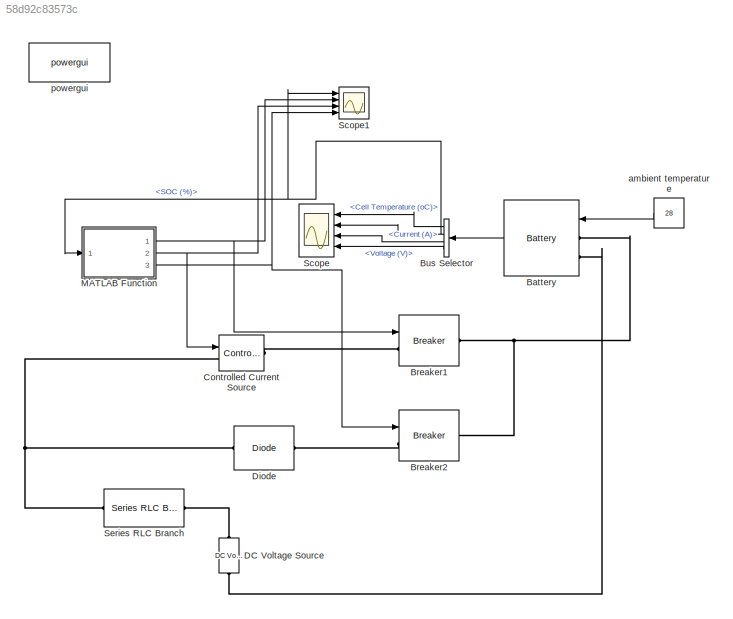
MODEL slx_58d92c83573c
KIND model
CONFIG AbsTol = auto
CONFIG EnableMultiTasking = off
CONFIG FixedStep = auto
CONFIG MaxStep = auto
CONFIG MinStep = auto
CONFIG RelTol = 1e-3
CONFIG SampleTimeConstraint = Unconstrained
CONFIG SolverName = VariableStepAuto
CONFIG StartTime = 0.0
CONFIG StopTime = 3600*2
BLOCK [Reference] Battery  REF=spsBatteryLib/Battery
  Ports = [1, 1, 0, 0, 0, 2]
  SourceBlock = spsBatteryLib/Battery
  SourceProductBaseCode = PS
  SourceType = Battery
BLOCK [Reference] Breaker1  REF=spsBreakerLib/Breaker
  Ports = [1, 0, 0, 0, 0, 1, 1]
  SourceBlock = spsBreakerLib/Breaker
  SourceProductBaseCode = PS
  SourceType = Breaker
BLOCK [Reference] Breaker2  REF=spsBreakerLib/Breaker
  Ports = [1, 0, 0, 0, 0, 1, 1]
  SourceBlock = spsBreakerLib/Breaker
  SourceProductBaseCode = PS
  SourceType = Breaker
BLOCK [BusSelector] Bus Selector
  NameLocation = top
  OutputSignals = Cell Temperature (oC),SOC (%),Current (A),Voltage (V)
  Ports = [1, 4]
BLOCK [Reference] Controlled Current Source  REF=spsControlledCurrentSourceLib/Controlled Current Source
  NameLocation = left
  Ports = [1, 0, 0, 0, 0, 1, 1]
  SourceBlock = spsControlledCurrentSourceLib/Controlled Current Source
  SourceProductBaseCode = PS
  SourceType = Controlled Current Source
BLOCK [Reference] DC Voltage Source  REF=spsDCVoltageSourceLib/DC Voltage Source
  Ports = [0, 0, 0, 0, 0, 1, 1]
  SourceBlock = spsDCVoltageSourceLib/DC Voltage Source
  SourceProductBaseCode = PS
  SourceType = DC Voltage Source
BLOCK [Reference] Diode  REF=spsDiodeLib/Diode
  Ports = [0, 0, 0, 0, 0, 1, 1]
  SourceBlock = spsDiodeLib/Diode
  SourceProductBaseCode = PS
  SourceType = Diode
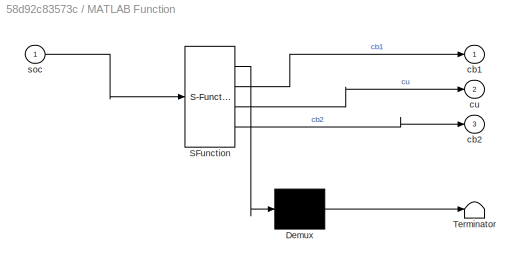
BLOCK [SubSystem] MATLAB Function
  ErrorFcn = Stateflow.Translate.translate
  PermitHierarchicalResolution = ExplicitOnly
  Ports = [1, 3]
  RequestExecContextInheritance = off
  SFBlockType = MATLAB Function
  TreatAsAtomicUnit = on
BLOCK [Demux] MATLAB Function/ Demux 
  Outputs = 1
  Ports = [1, 1]
BLOCK [S-Function] MATLAB Function/ SFunction 
  EnableBusSupport = on
  FunctionName = sf_sfun
  PortCounts = [1 4]
  Ports = [1, 4]
  SFcnIsStateOwnerBlock = off
  SFunctionDeploymentMode = off
  Tag = Stateflow S-Function 2
BLOCK [Terminator] MATLAB Function/ Terminator 
BLOCK [Outport] MATLAB Function/cb1
BLOCK [Outport] MATLAB Function/cb2
  Port = 3
BLOCK [Outport] MATLAB Function/cu
  Port = 2
BLOCK [Inport] MATLAB Function/soc
BLOCK [Scope] Scope
  Floating = off
  NameLocation = top
  NumInputPorts = 4
  Ports = [4]
  ScopeSpecificationString = Simulink.scopes.TimeScopeBlockCfg('CurrentConfiguration', extmgr.ConfigurationSet(extmgr.Configuration('Core','General UI',true),extmgr.Configuration('Core','Source UI',true),extmgr.Configuration('Sources','WiredSimulink',true),extmgr.Configuration('Visuals','Time Domain',true,'SerializedDisplays',{struct('MinYLimReal','18.99986','MaxYLimReal','29.00128','YLabelReal','','MinYLimMag','18.99986','Ma...<+3332ch>
BLOCK [Scope] Scope1
  Floating = off
  NumInputPorts = 4
  Ports = [4]
  ScopeSpecificationString = Simulink.scopes.TimeScopeBlockCfg('CurrentConfiguration', extmgr.ConfigurationSet(extmgr.Configuration('Core','General UI',true),extmgr.Configuration('Core','Source UI',true),extmgr.Configuration('Sources','WiredSimulink',true,'DataLoggingVariableName','ScopeData1'),extmgr.Configuration('Visuals','Time Domain',true,'SerializedDisplays',{struct('MinYLimReal','10.26807','MaxYLimReal','107.58734','YL...<+3399ch>
BLOCK [Reference] Series RLC Branch  REF=spsSeriesRLCBranchLib/Series RLC Branch
  Ports = [0, 0, 0, 0, 0, 1, 1]
  SourceBlock = spsSeriesRLCBranchLib/Series RLC Branch
  SourceProductBaseCode = PS
  SourceType = Series RLC Branch
BLOCK [Constant] ambient temperature
  NameLocation = top
  Value = 28
BLOCK [Reference] powergui  REF=spspowerguiLib/powergui
  Ports = []
  Priority = 1
  SourceBlock = spspowerguiLib/powergui
  SourceProductBaseCode = PS
  SourceType = PSB option menu block
LINE Battery:1 -> Bus Selector:1
LINE Bus Selector:1 -> Scope:1
NET Bus Selector:2 -> MATLAB Function:1, Scope1:1, Scope:2
LINE Bus Selector:3 -> Scope:3
LINE Bus Selector:4 -> Scope:4
NET MATLAB Function:1 -> Breaker1:1, Scope1:2
NET MATLAB Function:2 -> Controlled Current Source:1, Scope1:3
NET MATLAB Function:3 -> Breaker2:1, Scope1:4
LINE ambient temperature:1 -> Battery:1
PNET net1: Battery:LConn1 -- Breaker1:RConn1 -- Breaker2:RConn1
PLINE Battery:LConn2 -- DC Voltage Source:LConn1
PLINE Breaker1:LConn1 -- Controlled Current Source:RConn1
PLINE Breaker2:LConn1 -- Diode:RConn1
PNET net2: Controlled Current Source:LConn1 -- Diode:LConn1 -- Series RLC Branch:LConn1
PLINE DC Voltage Source:RConn1 -- Series RLC Branch:RConn1
note: NET lines group one-source signal fan-out (src -> all destinations, sorted); 1:1 wires keep LINE; PNET lines group multi-terminal physical nets as a canonical sorted terminal list (undirected conserving connections); 2-terminal nets keep the pairwise PLINE form
CHART MATLAB Function states=1 transitions=1
  STATE_LABEL 'eML_blk_kernel()'
  STATE_LABEL 'SCRIPT:\nfunction [cb1,cu,cb2] = fcn(soc)\ncu=0;\n\nif soc==0||soc<=80\n    cu=2;\n    cb1=1;\n    cb2=0;\nelse\n    cb2=1;\n    cb1=0;\nend\n\nif soc==100\n    cu=0;\n    cb1=0;\n    cb2=0;\nend\n'
CHART  states=0 transitions=0
